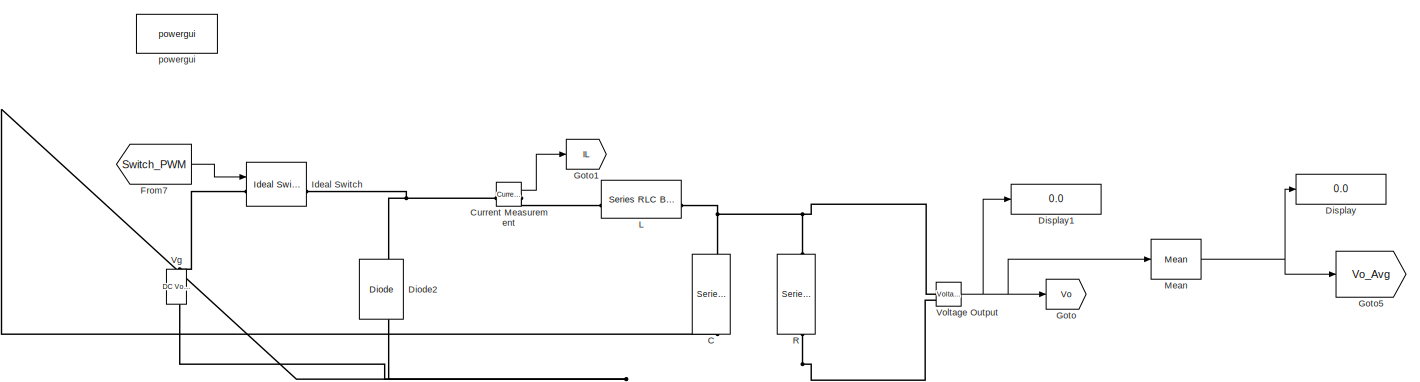
[diagram: root canvas - part 1/9, top center region]
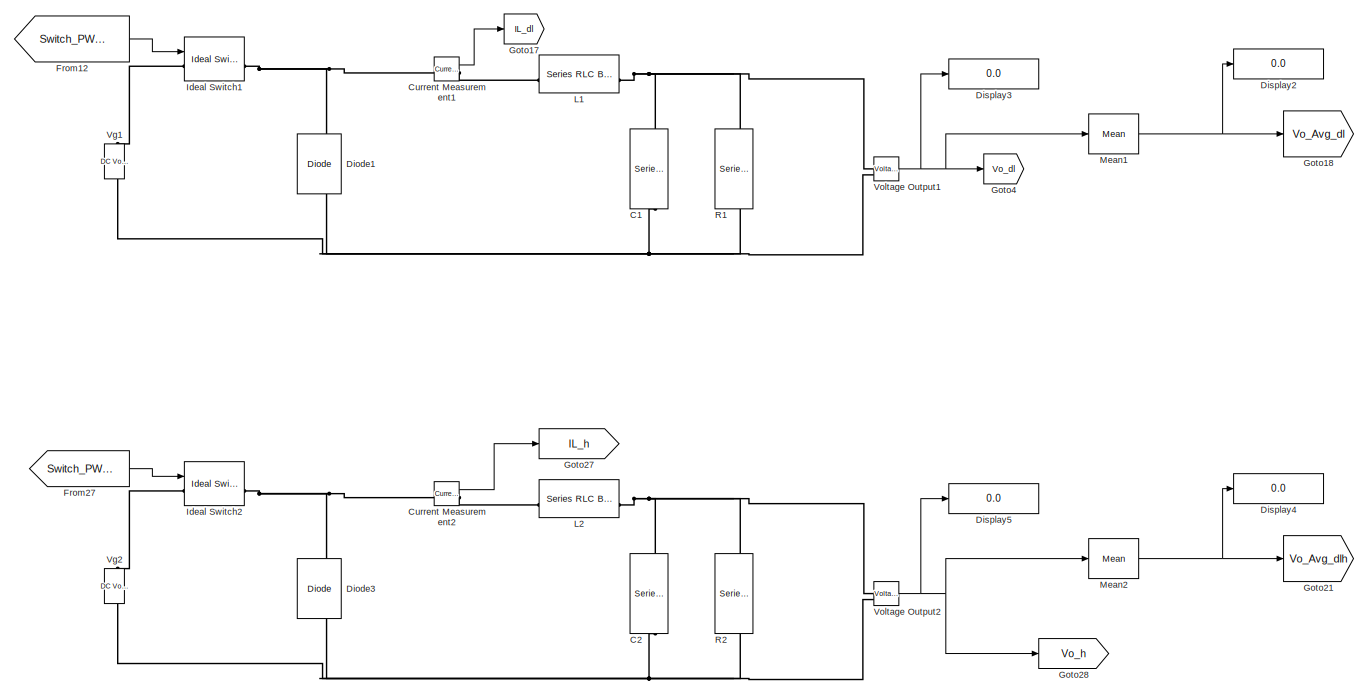
[diagram: root canvas - part 2/9, top right region]
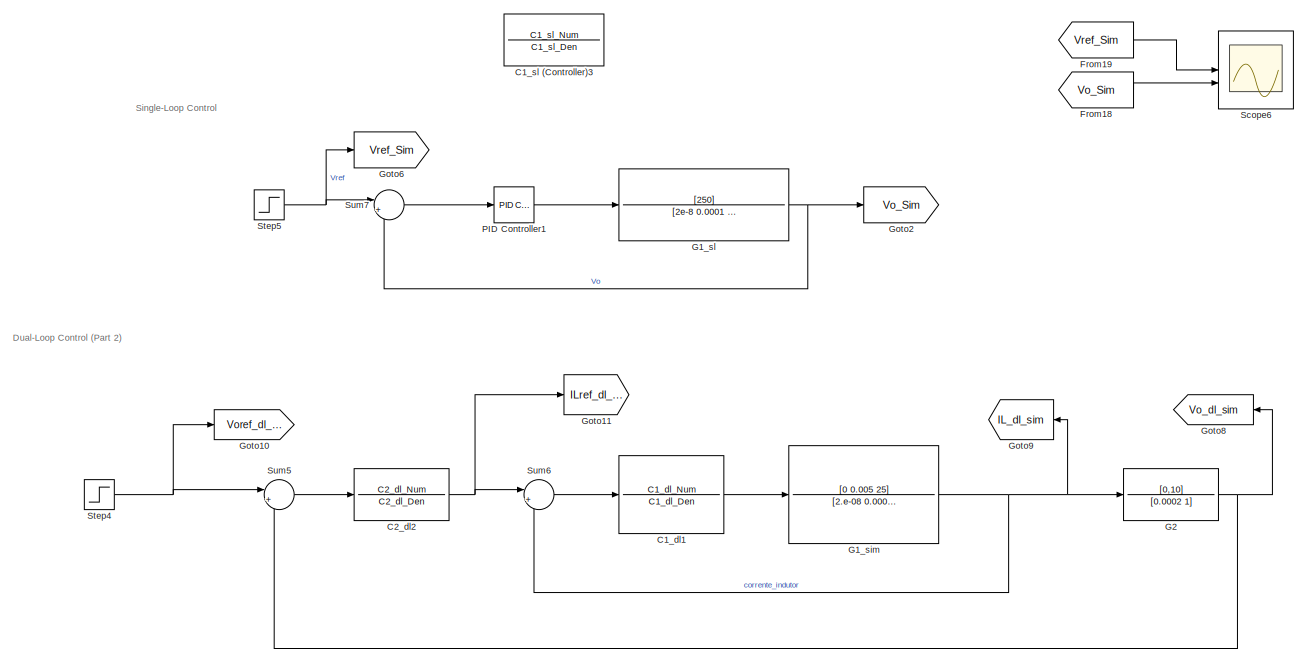
[diagram: root canvas - part 3/9, top left region]
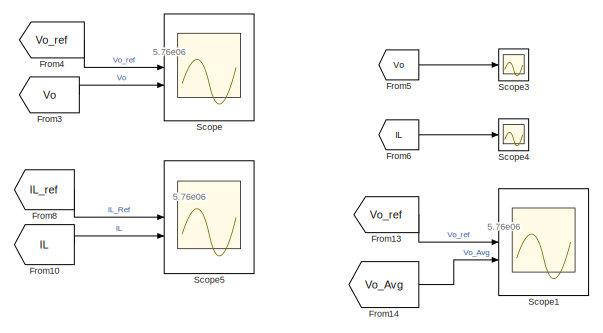
[diagram: root canvas - part 4/9, central region]
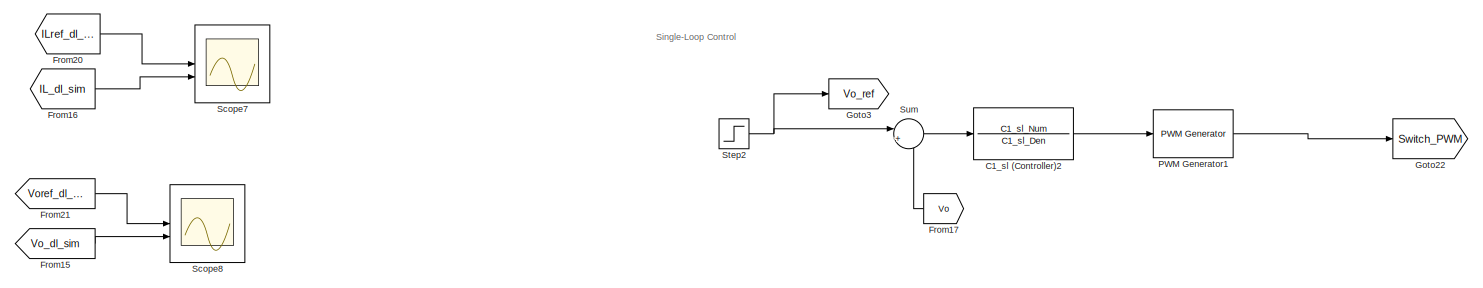
[diagram: root canvas - part 5/9, central region]
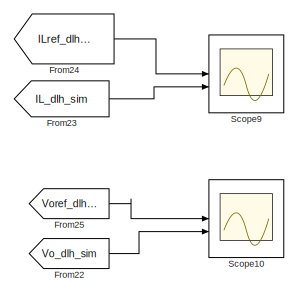
[diagram: root canvas - part 6/9, bottom left region]
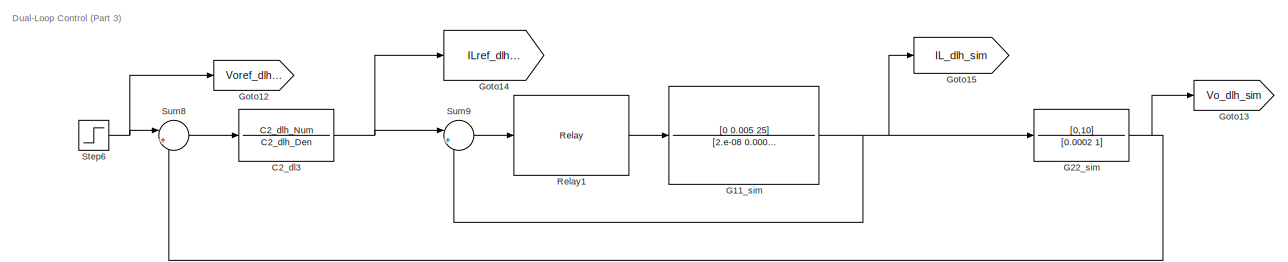
[diagram: root canvas - part 7/9, middle left region]
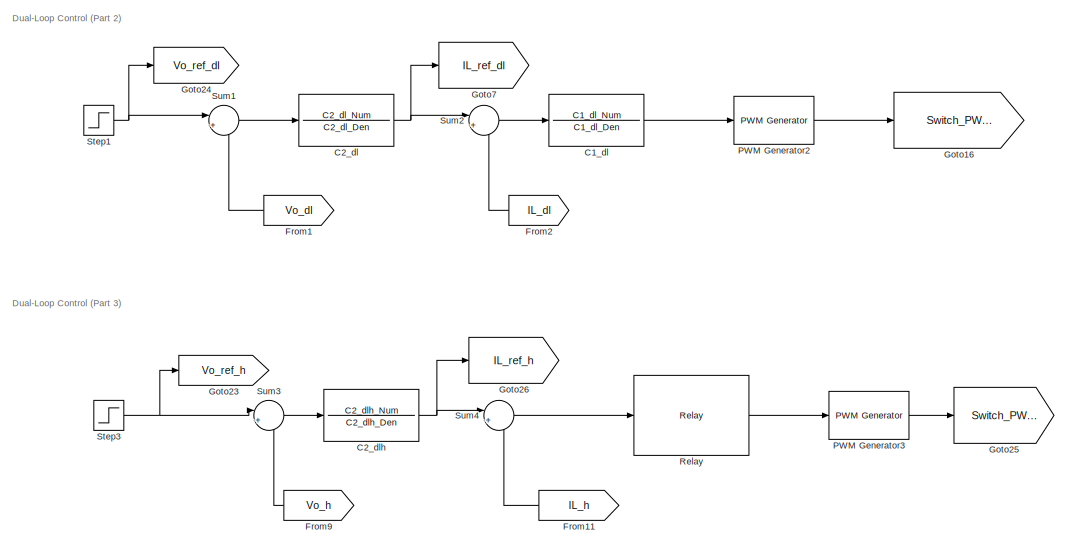
[diagram: root canvas - part 8/9, bottom center region]
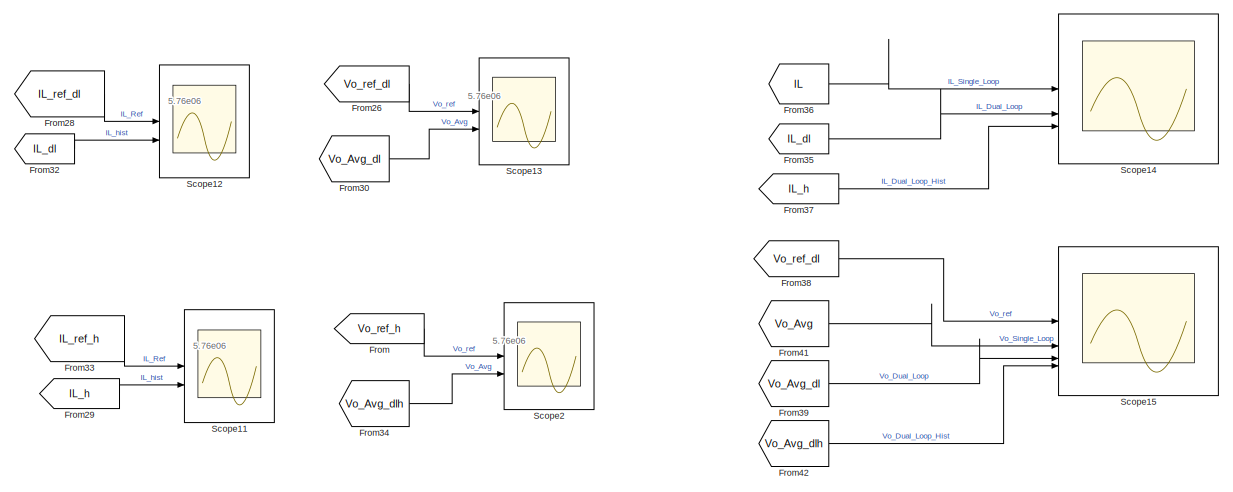
[diagram: root canvas - part 9/9, bottom right region]
MODEL slx_b2d99cfc7763
KIND model
CONFIG AbsTol = auto
CONFIG EnableMultiTasking = off
CONFIG FixedStep = auto
CONFIG MaxStep = auto
CONFIG MinStep = auto
CONFIG RelTol = 1e-6
CONFIG SampleTimeConstraint = Unconstrained
CONFIG SolverName = ode23t
CONFIG StartTime = 0.0
CONFIG StopTime = 20e-3
BLOCK [Reference] C  REF=spsSeriesRLCBranchLib/Series RLC Branch
  LibrarySourceBlock = sps_lib/Passives/Series RLC Branch
  NameLocation = left
  SourceBlock = spsSeriesRLCBranchLib/Series RLC Branch
  SourceType = Series RLC Branch
BLOCK [Reference] C1  REF=spsSeriesRLCBranchLib/Series RLC Branch
  LibrarySourceBlock = sps_lib/Passives/Series RLC Branch
  NameLocation = left
  SourceBlock = spsSeriesRLCBranchLib/Series RLC Branch
  SourceType = Series RLC Branch
BLOCK [TransferFcn] C1_dl
  Denominator = C1_dl_Den
  Numerator = C1_dl_Num
BLOCK [TransferFcn] C1_dl1
  Commented = on
  Denominator = C1_dl_Den
  Numerator = C1_dl_Num
BLOCK [TransferFcn] C1_sl (Controller)2
  Denominator = C1_sl_Den
  Numerator = C1_sl_Num
BLOCK [TransferFcn] C1_sl (Controller)3
  Commented = on
  Denominator = C1_sl_Den
  Numerator = C1_sl_Num
BLOCK [Reference] C2  REF=spsSeriesRLCBranchLib/Series RLC Branch
  LibrarySourceBlock = sps_lib/Passives/Series RLC Branch
  NameLocation = left
  SourceBlock = spsSeriesRLCBranchLib/Series RLC Branch
  SourceType = Series RLC Branch
BLOCK [TransferFcn] C2_dl
  Denominator = C2_dl_Den
  Numerator = C2_dl_Num
BLOCK [TransferFcn] C2_dl2
  Commented = on
  Denominator = C2_dl_Den
  Numerator = C2_dl_Num
BLOCK [TransferFcn] C2_dl3
  Commented = on
  Denominator = C2_dlh_Den
  Numerator = C2_dlh_Num
BLOCK [TransferFcn] C2_dlh
  Denominator = C2_dlh_Den
  Numerator = C2_dlh_Num
BLOCK [Reference] Current Measurement  REF=spsCurrentMeasurementLib/Current Measurement
  LibrarySourceBlock = sps_lib/Sensors and Measurements/Current Measurement
  SourceBlock = spsCurrentMeasurementLib/Current Measurement
  SourceType = Current Measurement
  UserDataPersistent = on
BLOCK [Reference] Current Measurement1  REF=spsCurrentMeasurementLib/Current Measurement
  LibrarySourceBlock = sps_lib/Sensors and Measurements/Current Measurement
  SourceBlock = spsCurrentMeasurementLib/Current Measurement
  SourceType = Current Measurement
  UserDataPersistent = on
BLOCK [Reference] Current Measurement2  REF=spsCurrentMeasurementLib/Current Measurement
  LibrarySourceBlock = sps_lib/Sensors and Measurements/Current Measurement
  SourceBlock = spsCurrentMeasurementLib/Current Measurement
  SourceType = Current Measurement
  UserDataPersistent = on
BLOCK [Reference] Diode1  REF=spsDiodeLib/Diode
  LibrarySourceBlock = sps_lib/Power Electronics/Diode
  NameLocation = right
  SourceBlock = spsDiodeLib/Diode
  SourceType = Diode
BLOCK [Reference] Diode2  REF=spsDiodeLib/Diode
  LibrarySourceBlock = sps_lib/Power Electronics/Diode
  NameLocation = right
  SourceBlock = spsDiodeLib/Diode
  SourceType = Diode
BLOCK [Reference] Diode3  REF=spsDiodeLib/Diode
  LibrarySourceBlock = sps_lib/Power Electronics/Diode
  NameLocation = right
  SourceBlock = spsDiodeLib/Diode
  SourceType = Diode
BLOCK [Display] Display
  Decimation = 1
BLOCK [Display] Display1
  Decimation = 1
BLOCK [Display] Display2
  Decimation = 1
BLOCK [Display] Display3
  Decimation = 1
BLOCK [Display] Display4
  Decimation = 1
BLOCK [Display] Display5
  Decimation = 1
BLOCK [From] From
  GotoTag = Vo_ref_h
BLOCK [From] From1
  GotoTag = Vo_dl
  NameLocation = top
BLOCK [From] From10
  GotoTag = IL
BLOCK [From] From11
  GotoTag = IL_h
  NameLocation = top
BLOCK [From] From12
  GotoTag = Switch_PWM_dl
BLOCK [From] From13
  GotoTag = Vo_ref
  NameLocation = top
BLOCK [From] From14
  GotoTag = Vo_Avg
BLOCK [From] From15
  Commented = on
  GotoTag = Vo_dl_sim
  NameLocation = top
BLOCK [From] From16
  Commented = on
  GotoTag = IL_dl_sim
  NameLocation = top
BLOCK [From] From17
  GotoTag = Vo
  NameLocation = top
BLOCK [From] From18
  Commented = on
  GotoTag = Vo_Sim
BLOCK [From] From19
  Commented = on
  GotoTag = Vref_Sim
BLOCK [From] From2
  GotoTag = IL_dl
  NameLocation = top
BLOCK [From] From20
  Commented = on
  GotoTag = ILref_dl_sim
BLOCK [From] From21
  Commented = on
  GotoTag = Voref_dl_sim
BLOCK [From] From22
  Commented = on
  GotoTag = Vo_dlh_sim
  NameLocation = top
BLOCK [From] From23
  Commented = on
  GotoTag = IL_dlh_sim
  NameLocation = top
BLOCK [From] From24
  Commented = on
  GotoTag = ILref_dlh_sim
BLOCK [From] From25
  Commented = on
  GotoTag = Voref_dlh_sim
BLOCK [From] From26
  GotoTag = Vo_ref_dl
BLOCK [From] From27
  GotoTag = Switch_PWM_h
BLOCK [From] From28
  GotoTag = IL_ref_dl
BLOCK [From] From29
  GotoTag = IL_h
BLOCK [From] From3
  GotoTag = Vo
BLOCK [From] From30
  GotoTag = Vo_Avg_dl
BLOCK [From] From32
  GotoTag = IL_dl
BLOCK [From] From33
  GotoTag = IL_ref_h
BLOCK [From] From34
  GotoTag = Vo_Avg_dlh
BLOCK [From] From35
  GotoTag = IL_dl
BLOCK [From] From36
  GotoTag = IL
BLOCK [From] From37
  GotoTag = IL_h
BLOCK [From] From38
  GotoTag = Vo_ref_dl
BLOCK [From] From39
  GotoTag = Vo_Avg_dl
BLOCK [From] From4
  GotoTag = Vo_ref
  NameLocation = top
BLOCK [From] From41
  GotoTag = Vo_Avg
BLOCK [From] From42
  GotoTag = Vo_Avg_dlh
BLOCK [From] From5
  GotoTag = Vo
BLOCK [From] From6
  GotoTag = IL
BLOCK [From] From7
  GotoTag = Switch_PWM
BLOCK [From] From8
  GotoTag = IL_ref
  NameLocation = top
BLOCK [From] From9
  GotoTag = Vo_h
  NameLocation = top
BLOCK [TransferFcn] G11_sim
  Commented = on
  Denominator = [2.e-08 0.0001 1]
  Numerator = [0 0.005 25]
BLOCK [TransferFcn] G1_sim
  Commented = on
  Denominator = [2.e-08 0.0001 1]
  Numerator = [0 0.005 25]
BLOCK [TransferFcn] G1_sl
  Commented = on
  Denominator = [2e-8 0.0001 1]
  Numerator = [250]
BLOCK [TransferFcn] G2
  Commented = on
  Denominator = [0.0002 1]
  Numerator = [0,10]
BLOCK [TransferFcn] G22_sim
  Commented = on
  Denominator = [0.0002 1]
  Numerator = [0,10]
BLOCK [Goto] Goto
  GotoTag = Vo
BLOCK [Goto] Goto1
  GotoTag = IL
  NameLocation = top
BLOCK [Goto] Goto10
  Commented = on
  GotoTag = Voref_dl_sim
  NameLocation = top
BLOCK [Goto] Goto11
  Commented = on
  GotoTag = ILref_dl_sim
  NameLocation = top
BLOCK [Goto] Goto12
  Commented = on
  GotoTag = Voref_dlh_sim
BLOCK [Goto] Goto13
  Commented = on
  GotoTag = Vo_dlh_sim
BLOCK [Goto] Goto14
  Commented = on
  GotoTag = ILref_dlh_sim
BLOCK [Goto] Goto15
  Commented = on
  GotoTag = IL_dlh_sim
BLOCK [Goto] Goto16
  GotoTag = Switch_PWM_dl
BLOCK [Goto] Goto17
  GotoTag = IL_dl
  NameLocation = top
BLOCK [Goto] Goto18
  GotoTag = Vo_Avg_dl
BLOCK [Goto] Goto2
  Commented = on
  GotoTag = Vo_Sim
BLOCK [Goto] Goto21
  GotoTag = Vo_Avg_dlh
BLOCK [Goto] Goto22
  GotoTag = Switch_PWM
BLOCK [Goto] Goto23
  GotoTag = Vo_ref_h
BLOCK [Goto] Goto24
  GotoTag = Vo_ref_dl
BLOCK [Goto] Goto25
  GotoTag = Switch_PWM_h
BLOCK [Goto] Goto26
  GotoTag = IL_ref_h
BLOCK [Goto] Goto27
  GotoTag = IL_h
  NameLocation = top
BLOCK [Goto] Goto28
  GotoTag = Vo_h
  NameLocation = top
BLOCK [Goto] Goto3
  GotoTag = Vo_ref
BLOCK [Goto] Goto4
  GotoTag = Vo_dl
BLOCK [Goto] Goto5
  GotoTag = Vo_Avg
BLOCK [Goto] Goto6
  Commented = on
  GotoTag = Vref_Sim
BLOCK [Goto] Goto7
  GotoTag = IL_ref_dl
BLOCK [Goto] Goto8
  Commented = on
  GotoTag = Vo_dl_sim
BLOCK [Goto] Goto9
  Commented = on
  GotoTag = IL_dl_sim
BLOCK [Reference] Ideal Switch  REF=spsIdealSwitchLib/Ideal Switch
  LibrarySourceBlock = sps_lib/Power Electronics/Ideal Switch
  SourceBlock = spsIdealSwitchLib/Ideal Switch
  SourceType = Ideal Switch
BLOCK [Reference] Ideal Switch1  REF=spsIdealSwitchLib/Ideal Switch
  LibrarySourceBlock = sps_lib/Power Electronics/Ideal Switch
  SourceBlock = spsIdealSwitchLib/Ideal Switch
  SourceType = Ideal Switch
BLOCK [Reference] Ideal Switch2  REF=spsIdealSwitchLib/Ideal Switch
  LibrarySourceBlock = sps_lib/Power Electronics/Ideal Switch
  SourceBlock = spsIdealSwitchLib/Ideal Switch
  SourceType = Ideal Switch
BLOCK [Reference] L  REF=spsSeriesRLCBranchLib/Series RLC Branch
  LibrarySourceBlock = sps_lib/Passives/Series RLC Branch
  SourceBlock = spsSeriesRLCBranchLib/Series RLC Branch
  SourceType = Series RLC Branch
BLOCK [Reference] L1  REF=spsSeriesRLCBranchLib/Series RLC Branch
  LibrarySourceBlock = sps_lib/Passives/Series RLC Branch
  SourceBlock = spsSeriesRLCBranchLib/Series RLC Branch
  SourceType = Series RLC Branch
BLOCK [Reference] L2  REF=spsSeriesRLCBranchLib/Series RLC Branch
  LibrarySourceBlock = sps_lib/Passives/Series RLC Branch
  SourceBlock = spsSeriesRLCBranchLib/Series RLC Branch
  SourceType = Series RLC Branch
BLOCK [Reference] Mean  REF=spsMeanLib/Mean
  LibrarySourceBlock = sps_lib/Sensors and Measurements/Mean
  SourceBlock = spsMeanLib/Mean
  SourceType = Mean
BLOCK [Reference] Mean1  REF=spsMeanLib/Mean
  LibrarySourceBlock = sps_lib/Sensors and Measurements/Mean
  SourceBlock = spsMeanLib/Mean
  SourceType = Mean
BLOCK [Reference] Mean2  REF=spsMeanLib/Mean
  LibrarySourceBlock = sps_lib/Sensors and Measurements/Mean
  SourceBlock = spsMeanLib/Mean
  SourceType = Mean
BLOCK [Reference] PID Controller1  REF=slpidlib/PID Controller
  Commented = on
  LibrarySourceBlock = simulink/Continuous/PID Controller
  SourceBlock = slpidlib/PID Controller
  SourceType = PID 1dof
BLOCK [Reference] PWM Generator1  REF=eePwmGenerator/PWM Generator
  LibrarySourceBlock = ee_sl_lib/Pulse Width\nModulation/PWM Generator
  SourceBlock = eePwmGenerator/PWM Generator
  SourceType = PWM Generator
BLOCK [Reference] PWM Generator2  REF=eePwmGenerator/PWM Generator
  LibrarySourceBlock = ee_sl_lib/Pulse Width\nModulation/PWM Generator
  SourceBlock = eePwmGenerator/PWM Generator
  SourceType = PWM Generator
BLOCK [Reference] PWM Generator3  REF=eePwmGenerator/PWM Generator
  LibrarySourceBlock = ee_sl_lib/Pulse Width\nModulation/PWM Generator
  SourceBlock = eePwmGenerator/PWM Generator
  SourceType = PWM Generator
BLOCK [Reference] R  REF=spsSeriesRLCBranchLib/Series RLC Branch
  LibrarySourceBlock = sps_lib/Passives/Series RLC Branch
  NameLocation = right
  SourceBlock = spsSeriesRLCBranchLib/Series RLC Branch
  SourceType = Series RLC Branch
BLOCK [Reference] R1  REF=spsSeriesRLCBranchLib/Series RLC Branch
  LibrarySourceBlock = sps_lib/Passives/Series RLC Branch
  NameLocation = right
  SourceBlock = spsSeriesRLCBranchLib/Series RLC Branch
  SourceType = Series RLC Branch
BLOCK [Reference] R2  REF=spsSeriesRLCBranchLib/Series RLC Branch
  LibrarySourceBlock = sps_lib/Passives/Series RLC Branch
  NameLocation = right
  SourceBlock = spsSeriesRLCBranchLib/Series RLC Branch
  SourceType = Series RLC Branch
BLOCK [Relay] Relay
  OffSwitchValue = 0
  OnOutputValue = 200
  OnSwitchValue = 0.1
BLOCK [Relay] Relay1
  Commented = on
  OffSwitchValue = 0
  OnOutputValue = 200
  OnSwitchValue = 0.1
BLOCK [Scope] Scope
  Floating = off
  NumInputPorts = 2
  ScopeSpecificationString = Simulink.scopes.TimeScopeBlockCfg('CurrentConfiguration', extmgr.ConfigurationSet(extmgr.Configuration('Core','General UI',true),extmgr.Configuration('Core','Source UI',true),extmgr.Configuration('Sources','WiredSimulink',true),extmgr.Configuration('Visuals','Time Domain',true,'SerializedDisplays',{struct('MinYLimReal','-8.38189','MaxYLimReal','75.68703','YLabelReal','','MinYLimMag','0.00000','Max...<+1406ch>
BLOCK [Scope] Scope1
  Floating = off
  NumInputPorts = 2
  ScopeSpecificationString = Simulink.scopes.TimeScopeBlockCfg('CurrentConfiguration', extmgr.ConfigurationSet(extmgr.Configuration('Core','General UI',true),extmgr.Configuration('Core','Source UI',true),extmgr.Configuration('Sources','WiredSimulink',true,'DataLoggingVariableName','ScopeData1'),extmgr.Configuration('Visuals','Time Domain',true,'SerializedDisplays',{struct('MinYLimReal','54.17354','MaxYLimReal','67.57887','YLa...<+1451ch>
BLOCK [Scope] Scope10
  Commented = on
  Floating = off
  NumInputPorts = 2
  ScopeSpecificationString = Simulink.scopes.TimeScopeBlockCfg('CurrentConfiguration', extmgr.ConfigurationSet(extmgr.Configuration('Core','General UI',true),extmgr.Configuration('Core','Source UI',true),extmgr.Configuration('Sources','WiredSimulink',true,'DataLoggingVariableName','ScopeData4'),extmgr.Configuration('Visuals','Time Domain',true,'SerializedDisplays',{struct('MinYLimReal','-1.00000','MaxYLimReal','1.00000','YLab...<+1480ch>
BLOCK [Scope] Scope11
  Floating = off
  NumInputPorts = 2
  ScopeSpecificationString = Simulink.scopes.TimeScopeBlockCfg('CurrentConfiguration', extmgr.ConfigurationSet(extmgr.Configuration('Core','General UI',true),extmgr.Configuration('Core','Source UI',true),extmgr.Configuration('Sources','WiredSimulink',true,'DataLoggingVariableName','ScopeData1'),extmgr.Configuration('Visuals','Time Domain',true,'SerializedDisplays',{struct('MinYLimReal','6.37347','MaxYLimReal','7.01421','YLabe...<+1695ch>
BLOCK [Scope] Scope12
  Floating = off
  NumInputPorts = 2
  ScopeSpecificationString = Simulink.scopes.TimeScopeBlockCfg('CurrentConfiguration', extmgr.ConfigurationSet(extmgr.Configuration('Core','General UI',true),extmgr.Configuration('Core','Source UI',true),extmgr.Configuration('Sources','WiredSimulink',true,'DataLoggingVariableName','ScopeData3'),extmgr.Configuration('Visuals','Time Domain',true,'SerializedDisplays',{struct('MinYLimReal','-0.92427','MaxYLimReal','8.31844','YLab...<+1703ch>
BLOCK [Scope] Scope13
  Floating = off
  NumInputPorts = 2
  ScopeSpecificationString = Simulink.scopes.TimeScopeBlockCfg('CurrentConfiguration', extmgr.ConfigurationSet(extmgr.Configuration('Core','General UI',true),extmgr.Configuration('Core','Source UI',true),extmgr.Configuration('Sources','WiredSimulink',true,'DataLoggingVariableName','ScopeData4'),extmgr.Configuration('Visuals','Time Domain',true,'SerializedDisplays',{struct('MinYLimReal','54.17354','MaxYLimReal','67.57887','YLa...<+1451ch>
BLOCK [Scope] Scope14
  Floating = off
  NumInputPorts = 3
  ScopeSpecificationString = Simulink.scopes.TimeScopeBlockCfg('CurrentConfiguration', extmgr.ConfigurationSet(extmgr.Configuration('Core','General UI',true),extmgr.Configuration('Core','Source UI',true),extmgr.Configuration('Sources','WiredSimulink',true,'DataLoggingVariableName','ScopeData5'),extmgr.Configuration('Visuals','Time Domain',true,'SerializedDisplays',{struct('MinYLimReal','-1.13326','MaxYLimReal','10.22436','YLa...<+1860ch>
BLOCK [Scope] Scope15
  Floating = off
  NumInputPorts = 4
  ScopeSpecificationString = Simulink.scopes.TimeScopeBlockCfg('CurrentConfiguration', extmgr.ConfigurationSet(extmgr.Configuration('Core','General UI',true),extmgr.Configuration('Core','Source UI',true),extmgr.Configuration('Sources','WiredSimulink',true,'DataLoggingVariableName','ScopeData6'),extmgr.Configuration('Visuals','Time Domain',true,'SerializedDisplays',{struct('MinYLimReal','42.26529','MaxYLimReal','74.37676','YLa...<+1916ch>
BLOCK [Scope] Scope2
  Floating = off
  NumInputPorts = 2
  ScopeSpecificationString = Simulink.scopes.TimeScopeBlockCfg('CurrentConfiguration', extmgr.ConfigurationSet(extmgr.Configuration('Core','General UI',true),extmgr.Configuration('Core','Source UI',true),extmgr.Configuration('Sources','WiredSimulink',true,'DataLoggingVariableName','ScopeData2'),extmgr.Configuration('Visuals','Time Domain',true,'SerializedDisplays',{struct('MinYLimReal','56.58634','MaxYLimReal','70.0919','YLab...<+1448ch>
BLOCK [Scope] Scope3
  Floating = off
  NumInputPorts = 1
  ScopeSpecificationString = Simulink.scopes.TimeScopeBlockCfg('CurrentConfiguration', extmgr.ConfigurationSet(extmgr.Configuration('Core','General UI',true),extmgr.Configuration('Core','Source UI',true),extmgr.Configuration('Sources','WiredSimulink',true,'DataLoggingVariableName','ScopeData2'),extmgr.Configuration('Visuals','Time Domain',true,'SerializedDisplays',{struct('MinYLimReal','-8.01039','MaxYLimReal','72.34347','YLa...<+1752ch>
BLOCK [Scope] Scope4
  Floating = off
  NumInputPorts = 1
  ScopeSpecificationString = Simulink.scopes.TimeScopeBlockCfg('CurrentConfiguration', extmgr.ConfigurationSet(extmgr.Configuration('Core','General UI',true),extmgr.Configuration('Core','Source UI',true),extmgr.Configuration('Sources','WiredSimulink',true,'DataLoggingVariableName','ScopeData3'),extmgr.Configuration('Visuals','Time Domain',true,'SerializedDisplays',{struct('MinYLimReal','-27.23351','MaxYLimReal','24.20784','YL...<+1483ch>
BLOCK [Scope] Scope5
  Floating = off
  NumInputPorts = 2
  ScopeSpecificationString = Simulink.scopes.TimeScopeBlockCfg('CurrentConfiguration', extmgr.ConfigurationSet(extmgr.Configuration('Core','General UI',true),extmgr.Configuration('Core','Source UI',true),extmgr.Configuration('Sources','WiredSimulink',true,'DataLoggingVariableName','ScopeData1'),extmgr.Configuration('Visuals','Time Domain',true,'SerializedDisplays',{struct('MinYLimReal','0.02172','MaxYLimReal','6.64995','YLabe...<+1696ch>
BLOCK [Scope] Scope6
  Commented = on
  Floating = off
  NumInputPorts = 2
  ScopeSpecificationString = Simulink.scopes.TimeScopeBlockCfg('CurrentConfiguration', extmgr.ConfigurationSet(extmgr.Configuration('Core','General UI',true),extmgr.Configuration('Core','Source UI',true),extmgr.Configuration('Sources','WiredSimulink',true,'DataLoggingVariableName','ScopeData1'),extmgr.Configuration('Visuals','Time Domain',true,'SerializedDisplays',{struct('MinYLimReal','54.0105','MaxYLimReal','66.53905','YLab...<+1422ch>
BLOCK [Scope] Scope7
  Commented = on
  Floating = off
  NumInputPorts = 2
  ScopeSpecificationString = Simulink.scopes.TimeScopeBlockCfg('CurrentConfiguration', extmgr.ConfigurationSet(extmgr.Configuration('Core','General UI',true),extmgr.Configuration('Core','Source UI',true),extmgr.Configuration('Sources','WiredSimulink',true,'DataLoggingVariableName','ScopeData2'),extmgr.Configuration('Visuals','Time Domain',true,'SerializedDisplays',{struct('MinYLimReal','-1.00000','MaxYLimReal','1.00000','YLab...<+1487ch>
BLOCK [Scope] Scope8
  Commented = on
  Floating = off
  NumInputPorts = 2
  ScopeSpecificationString = Simulink.scopes.TimeScopeBlockCfg('CurrentConfiguration', extmgr.ConfigurationSet(extmgr.Configuration('Core','General UI',true),extmgr.Configuration('Core','Source UI',true),extmgr.Configuration('Sources','WiredSimulink',true,'DataLoggingVariableName','ScopeData3'),extmgr.Configuration('Visuals','Time Domain',true,'SerializedDisplays',{struct('MinYLimReal','-1.00000','MaxYLimReal','1.00000','YLab...<+1480ch>
BLOCK [Scope] Scope9
  Commented = on
  Floating = off
  NumInputPorts = 2
  ScopeSpecificationString = Simulink.scopes.TimeScopeBlockCfg('CurrentConfiguration', extmgr.ConfigurationSet(extmgr.Configuration('Core','General UI',true),extmgr.Configuration('Core','Source UI',true),extmgr.Configuration('Sources','WiredSimulink',true,'DataLoggingVariableName','ScopeData5'),extmgr.Configuration('Visuals','Time Domain',true,'SerializedDisplays',{struct('MinYLimReal','-0.91527','MaxYLimReal','8.23747','YLab...<+1494ch>
BLOCK [Step] Step1
  After = 66
  Before = 60
  SampleTime = 0
  Time = 10e-3
BLOCK [Step] Step2
  After = 66
  Before = 60
  SampleTime = 0
  Time = 10e-3
BLOCK [Step] Step3
  After = 66
  Before = 60
  SampleTime = 0
  Time = 10e-3
BLOCK [Step] Step4
  After = 66
  Before = 60
  Commented = on
  SampleTime = 0
  Time = 6e-3
BLOCK [Step] Step5
  After = 66
  Before = 60
  Commented = on
  SampleTime = 0
  Time = 6e-3
BLOCK [Step] Step6
  After = 66
  Before = 60
  Commented = on
  SampleTime = 0
  Time = 6e-3
BLOCK [Sum] Sum
  Inputs = |+-
BLOCK [Sum] Sum1
  Inputs = |+-
BLOCK [Sum] Sum2
  Inputs = |+-
BLOCK [Sum] Sum3
  Inputs = |+-
BLOCK [Sum] Sum4
  Inputs = |+-
BLOCK [Sum] Sum5
  Commented = on
  Inputs = |+-
BLOCK [Sum] Sum6
  Commented = on
  Inputs = |+-
BLOCK [Sum] Sum7
  Commented = on
  Inputs = |+-
BLOCK [Sum] Sum8
  Commented = on
  Inputs = |+-
BLOCK [Sum] Sum9
  Commented = on
  Inputs = |+-
BLOCK [Reference] Vg  REF=spsDCVoltageSourceLib/DC Voltage Source
  LibrarySourceBlock = sps_lib/Sources/DC Voltage Source
  NameLocation = left
  SourceBlock = spsDCVoltageSourceLib/DC Voltage Source
  SourceType = DC Voltage Source
BLOCK [Reference] Vg1  REF=spsDCVoltageSourceLib/DC Voltage Source
  LibrarySourceBlock = sps_lib/Sources/DC Voltage Source
  NameLocation = left
  SourceBlock = spsDCVoltageSourceLib/DC Voltage Source
  SourceType = DC Voltage Source
BLOCK [Reference] Vg2  REF=spsDCVoltageSourceLib/DC Voltage Source
  LibrarySourceBlock = sps_lib/Sources/DC Voltage Source
  NameLocation = left
  SourceBlock = spsDCVoltageSourceLib/DC Voltage Source
  SourceType = DC Voltage Source
BLOCK [Reference] Voltage Output  REF=spsVoltageMeasurementLib/Voltage Measurement
  LibrarySourceBlock = sps_lib/Sensors and Measurements/Voltage Measurement
  SourceBlock = spsVoltageMeasurementLib/Voltage Measurement
  SourceType = Voltage Measurement
  UserDataPersistent = on
BLOCK [Reference] Voltage Output1  REF=spsVoltageMeasurementLib/Voltage Measurement
  LibrarySourceBlock = sps_lib/Sensors and Measurements/Voltage Measurement
  SourceBlock = spsVoltageMeasurementLib/Voltage Measurement
  SourceType = Voltage Measurement
  UserDataPersistent = on
BLOCK [Reference] Voltage Output2  REF=spsVoltageMeasurementLib/Voltage Measurement
  LibrarySourceBlock = sps_lib/Sensors and Measurements/Voltage Measurement
  SourceBlock = spsVoltageMeasurementLib/Voltage Measurement
  SourceType = Voltage Measurement
  UserDataPersistent = on
BLOCK [Reference] powergui  REF=sps_lib/powergui
  LibrarySourceBlock = sps_lib/powergui
  Priority = 1
  SourceBlock = sps_lib/powergui
  SourceType = PSB option menu block
ANNOTATION (root): 5.76e06
ANNOTATION (root): Dual-Loop Control (Part 2)
ANNOTATION (root): Dual-Loop Control (Part 3)
ANNOTATION (root): Single-Loop Control
LINE C1_dl1:1 -> G1_sim:1
LINE C1_dl:1 -> PWM Generator2:1
LINE C1_sl (Controller)2:1 -> PWM Generator1:1
NET C2_dl2:1 -> Goto11:1, Sum6:1
NET C2_dl3:1 -> Goto14:1, Sum9:1
NET C2_dl:1 -> Goto7:1, Sum2:1
NET C2_dlh:1 -> Goto26:1, Sum4:1
LINE Current Measurement1:1 -> Goto17:1
LINE Current Measurement2:1 -> Goto27:1
LINE Current Measurement:1 -> Goto1:1
LINE From10:1 -> Scope5:2
LINE From11:1 -> Sum4:2
LINE From12:1 -> Ideal Switch1:1
LINE From13:1 -> Scope1:1
LINE From14:1 -> Scope1:2
LINE From15:1 -> Scope8:2
LINE From16:1 -> Scope7:2
LINE From17:1 -> Sum:2
LINE From18:1 -> Scope6:2
LINE From19:1 -> Scope6:1
LINE From1:1 -> Sum1:2
LINE From20:1 -> Scope7:1
LINE From21:1 -> Scope8:1
LINE From22:1 -> Scope10:2
LINE From23:1 -> Scope9:2
LINE From24:1 -> Scope9:1
LINE From25:1 -> Scope10:1
LINE From26:1 -> Scope13:1
LINE From27:1 -> Ideal Switch2:1
LINE From28:1 -> Scope12:1
LINE From29:1 -> Scope11:2
LINE From2:1 -> Sum2:2
LINE From30:1 -> Scope13:2
LINE From32:1 -> Scope12:2
LINE From33:1 -> Scope11:1
LINE From34:1 -> Scope2:2
LINE From35:1 -> Scope14:2
LINE From36:1 -> Scope14:1
LINE From37:1 -> Scope14:3
LINE From38:1 -> Scope15:1
LINE From39:1 -> Scope15:3
LINE From3:1 -> Scope:2
LINE From41:1 -> Scope15:2
LINE From42:1 -> Scope15:4
LINE From4:1 -> Scope:1
LINE From5:1 -> Scope3:1
LINE From6:1 -> Scope4:1
LINE From7:1 -> Ideal Switch:1
LINE From8:1 -> Scope5:1
LINE From9:1 -> Sum3:2
LINE From:1 -> Scope2:1
NET G11_sim:1 -> G22_sim:1, Goto15:1, Sum9:2
NET G1_sim:1 -> G2:1, Goto9:1, Sum6:2
NET G1_sl:1 -> Goto2:1, Sum7:2
NET G22_sim:1 -> Goto13:1, Sum8:2
NET G2:1 -> Goto8:1, Sum5:2
NET Mean1:1 -> Display2:1, Goto18:1
NET Mean2:1 -> Display4:1, Goto21:1
NET Mean:1 -> Display:1, Goto5:1
LINE PID Controller1:1 -> G1_sl:1
LINE PWM Generator1:1 -> Goto22:1
LINE PWM Generator2:1 -> Goto16:1
LINE PWM Generator3:1 -> Goto25:1
LINE Relay1:1 -> G11_sim:1
LINE Relay:1 -> PWM Generator3:1
NET Step1:1 -> Goto24:1, Sum1:1
NET Step2:1 -> Goto3:1, Sum:1
NET Step3:1 -> Goto23:1, Sum3:1
NET Step4:1 -> Goto10:1, Sum5:1
NET Step5:1 -> Goto6:1, Sum7:1
NET Step6:1 -> Goto12:1, Sum8:1
LINE Sum1:1 -> C2_dl:1
LINE Sum2:1 -> C1_dl:1
LINE Sum3:1 -> C2_dlh:1
LINE Sum4:1 -> Relay:1
LINE Sum5:1 -> C2_dl2:1
LINE Sum6:1 -> C1_dl1:1
LINE Sum7:1 -> PID Controller1:1
LINE Sum8:1 -> C2_dl3:1
LINE Sum9:1 -> Relay1:1
LINE Sum:1 -> C1_sl (Controller)2:1
NET Voltage Output1:1 -> Display3:1, Goto4:1, Mean1:1
NET Voltage Output2:1 -> Display5:1, Goto28:1, Mean2:1
NET Voltage Output:1 -> Display1:1, Goto:1, Mean:1
PNET net1: C1:LConn1 -- L1:RConn1 -- R1:LConn1 -- Voltage Output1:LConn1
PNET net2: C1:RConn1 -- Diode1:LConn1 -- R1:RConn1 -- Vg1:LConn1 -- Voltage Output1:LConn2
PNET net3: C2:LConn1 -- L2:RConn1 -- R2:LConn1 -- Voltage Output2:LConn1
PNET net4: C2:RConn1 -- Diode3:LConn1 -- R2:RConn1 -- Vg2:LConn1 -- Voltage Output2:LConn2
PNET net5: C:LConn1 -- L:RConn1 -- R:LConn1 -- Voltage Output:LConn1
PNET net6: C:RConn1 -- Diode2:LConn1 -- R:RConn1 -- Vg:LConn1 -- Voltage Output:LConn2
PNET net7: Current Measurement1:LConn1 -- Diode1:RConn1 -- Ideal Switch1:RConn1
PLINE Current Measurement1:RConn1 -- L1:LConn1
PNET net8: Current Measurement2:LConn1 -- Diode3:RConn1 -- Ideal Switch2:RConn1
PLINE Current Measurement2:RConn1 -- L2:LConn1
PNET net9: Current Measurement:LConn1 -- Diode2:RConn1 -- Ideal Switch:RConn1
PLINE Current Measurement:RConn1 -- L:LConn1
PLINE Ideal Switch1:LConn1 -- Vg1:RConn1
PLINE Ideal Switch2:LConn1 -- Vg2:RConn1
PLINE Ideal Switch:LConn1 -- Vg:RConn1
note: NET lines group one-source signal fan-out (src -> all destinations, sorted); 1:1 wires keep LINE; PNET lines group multi-terminal physical nets as a canonical sorted terminal list (undirected conserving connections); 2-terminal nets keep the pairwise PLINE form
